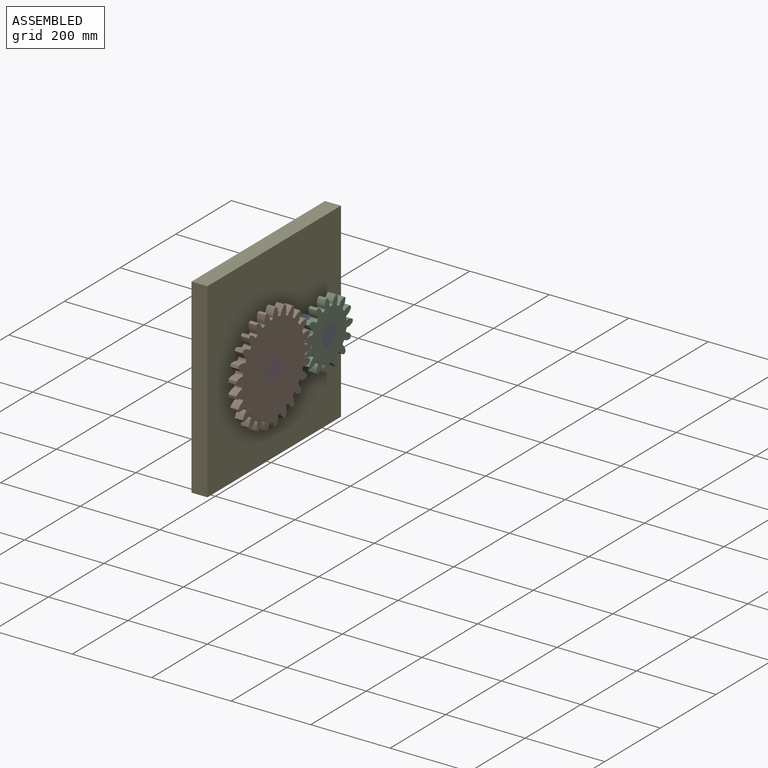
[diagram: assembled view]
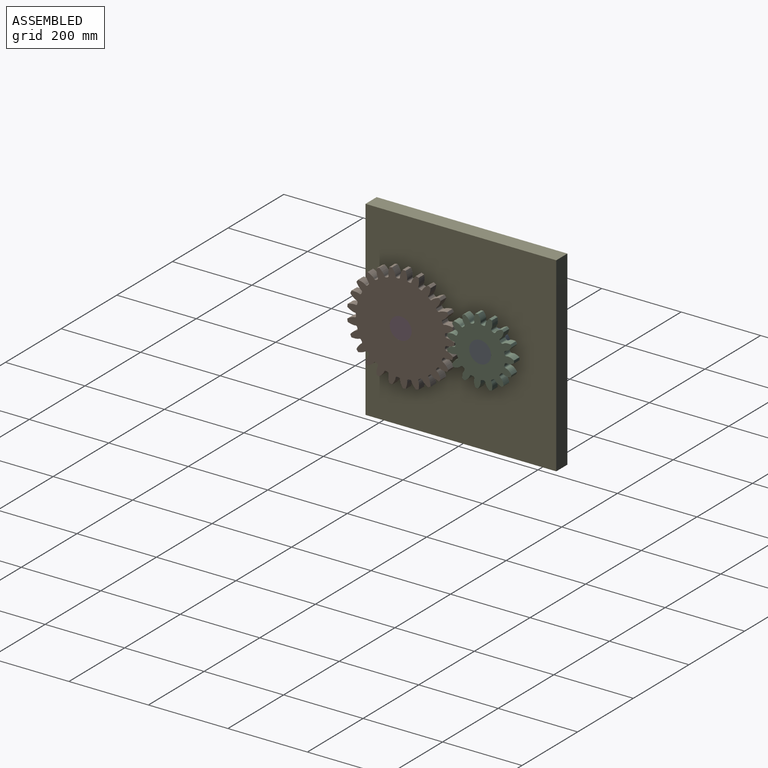
[diagram: assembled view, second angle]
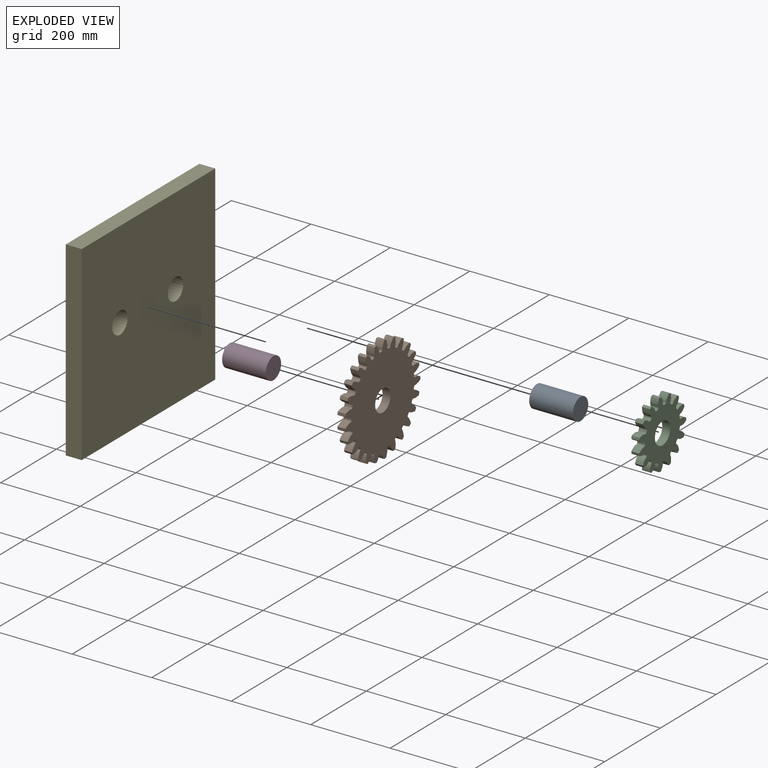
[diagram: exploded view]
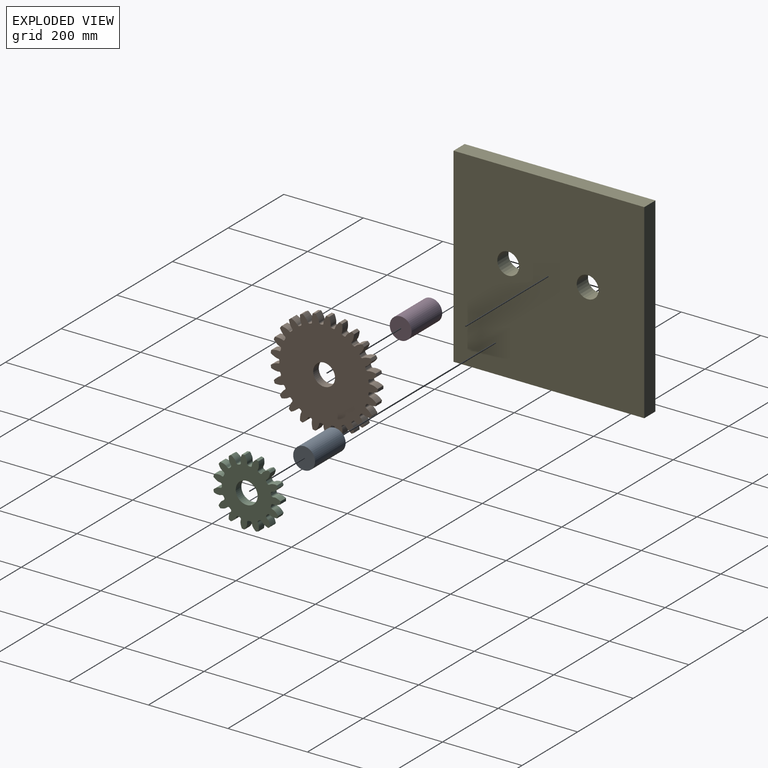
[diagram: exploded view, second angle]
ASSEMBLY  parts=5 mates=4
PART A: 3 faces, bbox 110x55x55 mm
  f0: cylinder r=27.5mm len=110mm, axis (-1,0,0), area 19006.6mm2, adj f1,f2
  f1: plane 55x55mm, normal (1,0,0), area 2375.8mm2, adj f0
  f2: plane 55x55mm, normal (-1,0,0), area 2375.8mm2, adj f0
PART B: 153 faces, bbox 269.4x20x269.9 mm
  f0: cylinder r=135mm len=20mm, axis (0,1,0), area 143.7mm2, adj f24,f26,f137,f149
  f1: cylinder r=135mm len=20mm, axis (0,1,0), area 143.7mm2, adj f24,f26,f144,f147
  f2: cylinder r=135mm len=20mm, axis (0,1,0), area 143.7mm2, adj f24,f26,f132,f139
  f3: cylinder r=135mm len=20mm, axis (0,1,0), area 143.7mm2, adj f24,f26,f127,f134
  f4: cylinder r=135mm len=20mm, axis (0,1,0), area 143.7mm2, adj f24,f26,f122,f129
  f5: cylinder r=135mm len=20mm, axis (0,1,0), area 143.7mm2, adj f24,f26,f112,f124
  f6: cylinder r=135mm len=20mm, axis (0,1,0), area 143.7mm2, adj f24,f26,f107,f119
  f7: cylinder r=135mm len=20mm, axis (0,1,0), area 143.7mm2, adj f24,f26,f114,f117
  f8: cylinder r=135mm len=20mm, axis (0,1,0), area 143.7mm2, adj f24,f26,f102,f109
  f9: cylinder r=135mm len=20mm, axis (0,1,0), area 143.7mm2, adj f24,f26,f97,f104
  f10: cylinder r=135mm len=20mm, axis (0,1,0), area 143.7mm2, adj f24,f26,f92,f99
  f11: cylinder r=135mm len=20mm, axis (0,1,0), area 143.7mm2, adj f24,f26,f77,f94
  f12: cylinder r=135mm len=20mm, axis (0,1,0), area 143.7mm2, adj f24,f26,f27,f89
  f13: cylinder r=135mm len=20mm, axis (0,1,0), area 143.7mm2, adj f24,f26,f84,f87
  f14: cylinder r=135mm len=20mm, axis (0,1,0), area 143.7mm2, adj f24,f26,f72,f79
  f15: cylinder r=135mm len=20mm, axis (0,1,0), area 143.7mm2, adj f24,f26,f74,f82
  f16: cylinder r=135mm len=20mm, axis (0,1,0), area 143.7mm2, adj f24,f26,f69,f142
  f17: cylinder r=135mm len=20mm, axis (0,1,0), area 143.7mm2, adj f24,f26,f64,f67
  f18: cylinder r=135mm len=20mm, axis (0,1,0), area 143.7mm2, adj f24,f26,f59,f62
  f19: cylinder r=135mm len=20mm, axis (0,1,0), area 143.7mm2, adj f24,f26,f54,f57
  f20: cylinder r=135mm len=20mm, axis (0,1,0), area 143.7mm2, adj f24,f26,f42,f49
  f21: cylinder r=135mm len=20mm, axis (0,1,0), area 143.7mm2, adj f24,f26,f32,f44
  f22: cylinder r=135mm len=20mm, axis (0,1,0), area 143.7mm2, adj f24,f26,f39,f52
  f23: cylinder r=135mm len=20mm, axis (0,1,0), area 143.7mm2, adj f24,f26,f34,f37
  f24: plane 269.87x269.36mm, normal (0,-1,0), area 45986.9mm2, adj f0,f1,f2,f3,f4,f5,f6,f7
  f25: cylinder r=135mm len=20mm, axis (0,1,0), area 143.7mm2, adj f24,f26,f29,f47
  f26: plane 269.87x269.36mm, normal (0,1,0), area 45986.9mm2, adj f0,f1,f2,f3,f4,f5,f6,f7
  f27: extruded ~20x18.25mm, area 401.8mm2, adj f12,f24,f26,f30
  f28: cylinder r=112.5mm len=20mm, axis (0,1,0), area 68.7mm2, adj f24,f26,f30,f31
  f29: extruded ~20x18.25mm, area 401.8mm2, adj f24,f25,f26,f31
  f30: cylinder r=3.79mm len=20mm, axis (0,1,0), area 116.3mm2, adj f24,f26,f27,f28
  f31: cylinder r=3.79mm len=20mm, axis (0,1,0), area 116.3mm2, adj f24,f26,f28,f29
  f32: extruded ~20x18.64mm, area 401.8mm2, adj f21,f24,f26,f35
  f33: cylinder r=112.5mm len=20mm, axis (0,1,0), area 68.7mm2, adj f24,f26,f35,f36
  f34: extruded ~20x18.18mm, area 401.8mm2, adj f23,f24,f26,f36
  f35: cylinder r=3.79mm len=20mm, axis (0,1,0), area 116.3mm2, adj f24,f26,f32,f33
  f36: cylinder r=3.79mm len=20mm, axis (0,1,0), area 116.3mm2, adj f24,f26,f33,f34
  f37: extruded ~20x16.36mm, area 401.8mm2, adj f23,f24,f26,f40
  f38: cylinder r=112.5mm len=20mm, axis (0,1,0), area 68.7mm2, adj f24,f26,f40,f41
  f39: extruded ~20x19.59mm, area 401.8mm2, adj f22,f24,f26,f41
  f40: cylinder r=3.79mm len=20mm, axis (0,1,0), area 116.3mm2, adj f24,f26,f37,f38
  f41: cylinder r=3.79mm len=20mm, axis (0,1,0), area 116.3mm2, adj f24,f26,f38,f39
  f42: extruded ~20x19.75mm, area 401.8mm2, adj f20,f24,f26,f45
  f43: cylinder r=112.5mm len=20mm, axis (0,1,0), area 68.7mm2, adj f24,f26,f45,f46
  f44: extruded ~20x15.62mm, area 401.8mm2, adj f21,f24,f26,f46
  f45: cylinder r=3.79mm len=20mm, axis (0,1,0), area 116.3mm2, adj f24,f26,f42,f43
  f46: cylinder r=3.79mm len=20mm, axis (0,1,0), area 116.3mm2, adj f24,f26,f43,f44
  f47: extruded ~20x19.62mm, area 401.8mm2, adj f24,f25,f26,f50
  f48: cylinder r=112.5mm len=20mm, axis (0,1,0), area 68.7mm2, adj f24,f26,f50,f51
  f49: extruded ~20x15.74mm, area 401.8mm2, adj f20,f24,f26,f51
  f50: cylinder r=3.79mm len=20mm, axis (0,1,0), area 116.3mm2, adj f24,f26,f47,f48
  f51: cylinder r=3.79mm len=20mm, axis (0,1,0), area 116.3mm2, adj f24,f26,f48,f49
  f52: extruded ~20x14.95mm, area 401.8mm2, adj f22,f24,f26,f55
  f53: cylinder r=112.5mm len=20mm, axis (0,1,0), area 68.7mm2, adj f24,f26,f55,f56
  f54: extruded ~20x19.77mm, area 401.8mm2, adj f19,f24,f26,f56
  f55: cylinder r=3.79mm len=20mm, axis (0,1,0), area 116.3mm2, adj f24,f26,f52,f53
  f56: cylinder r=3.79mm len=20mm, axis (0,1,0), area 116.3mm2, adj f24,f26,f53,f54
  f57: extruded ~20x17.73mm, area 401.8mm2, adj f19,f24,f26,f60
  f58: cylinder r=112.5mm len=20mm, axis (0,1,0), area 68.7mm2, adj f24,f26,f60,f61
  f59: extruded ~20x18.71mm, area 401.8mm2, adj f18,f24,f26,f61
  f60: cylinder r=3.79mm len=20mm, axis (0,1,0), area 116.3mm2, adj f24,f26,f57,f58
  f61: cylinder r=3.79mm len=20mm, axis (0,1,0), area 116.3mm2, adj f24,f26,f58,f59
  f62: extruded ~20x19.39mm, area 401.8mm2, adj f18,f24,f26,f65
  f63: cylinder r=112.5mm len=20mm, axis (0,1,0), area 68.7mm2, adj f24,f26,f65,f66
  f64: extruded ~20x16.47mm, area 401.8mm2, adj f17,f24,f26,f66
  f65: cylinder r=3.79mm len=20mm, axis (0,1,0), area 116.3mm2, adj f24,f26,f62,f63
  f66: cylinder r=3.79mm len=20mm, axis (0,1,0), area 116.3mm2, adj f24,f26,f63,f64
  f67: extruded ~20x19.83mm, area 401.8mm2, adj f17,f24,f26,f70
  f68: cylinder r=112.5mm len=20mm, axis (0,1,0), area 68.7mm2, adj f24,f26,f70,f71
  f69: extruded ~20x14.82mm, area 401.8mm2, adj f16,f24,f26,f71
  f70: cylinder r=3.79mm len=20mm, axis (0,1,0), area 116.3mm2, adj f24,f26,f67,f68
  f71: cylinder r=3.79mm len=20mm, axis (0,1,0), area 116.3mm2, adj f24,f26,f68,f69
  f72: extruded ~20x18.18mm, area 401.8mm2, adj f14,f24,f26,f75
  f73: cylinder r=112.5mm len=20mm, axis (0,1,0), area 68.7mm2, adj f24,f26,f75,f76
  f74: extruded ~20x18.64mm, area 401.8mm2, adj f15,f24,f26,f76
  f75: cylinder r=3.79mm len=20mm, axis (0,1,0), area 116.3mm2, adj f24,f26,f72,f73
  f76: cylinder r=3.79mm len=20mm, axis (0,1,0), area 116.3mm2, adj f24,f26,f73,f74
  f77: extruded ~20x19.59mm, area 401.8mm2, adj f11,f24,f26,f80
  f78: cylinder r=112.5mm len=20mm, axis (0,1,0), area 68.7mm2, adj f24,f26,f80,f81
  f79: extruded ~20x16.36mm, area 401.8mm2, adj f14,f24,f26,f81
  f80: cylinder r=3.79mm len=20mm, axis (0,1,0), area 116.3mm2, adj f24,f26,f77,f78
  f81: cylinder r=3.79mm len=20mm, axis (0,1,0), area 116.3mm2, adj f24,f26,f78,f79
  f82: extruded ~20x15.62mm, area 401.8mm2, adj f15,f24,f26,f85
  f83: cylinder r=112.5mm len=20mm, axis (0,1,0), area 68.7mm2, adj f24,f26,f85,f86
  f84: extruded ~20x19.75mm, area 401.8mm2, adj f13,f24,f26,f86
  f85: cylinder r=3.79mm len=20mm, axis (0,1,0), area 116.3mm2, adj f24,f26,f82,f83
  f86: cylinder r=3.79mm len=20mm, axis (0,1,0), area 116.3mm2, adj f24,f26,f83,f84
  f87: extruded ~20x15.74mm, area 401.8mm2, adj f13,f24,f26,f90
  f88: cylinder r=112.5mm len=20mm, axis (0,1,0), area 68.7mm2, adj f24,f26,f90,f91
  f89: extruded ~20x19.62mm, area 401.8mm2, adj f12,f24,f26,f91
  f90: cylinder r=3.79mm len=20mm, axis (0,1,0), area 116.3mm2, adj f24,f26,f87,f88
  f91: cylinder r=3.79mm len=20mm, axis (0,1,0), area 116.3mm2, adj f24,f26,f88,f89
  f92: extruded ~20x19.77mm, area 401.8mm2, adj f10,f24,f26,f95
  f93: cylinder r=112.5mm len=20mm, axis (0,1,0), area 68.7mm2, adj f24,f26,f95,f96
  f94: extruded ~20x14.95mm, area 401.8mm2, adj f11,f24,f26,f96
  f95: cylinder r=3.79mm len=20mm, axis (0,1,0), area 116.3mm2, adj f24,f26,f92,f93
  f96: cylinder r=3.79mm len=20mm, axis (0,1,0), area 116.3mm2, adj f24,f26,f93,f94
  f97: extruded ~20x18.71mm, area 401.8mm2, adj f9,f24,f26,f100
  f98: cylinder r=112.5mm len=20mm, axis (0,1,0), area 68.7mm2, adj f24,f26,f100,f101
  f99: extruded ~20x17.73mm, area 401.8mm2, adj f10,f24,f26,f101
  f100: cylinder r=3.79mm len=20mm, axis (0,1,0), area 116.3mm2, adj f24,f26,f97,f98
  f101: cylinder r=3.79mm len=20mm, axis (0,1,0), area 116.3mm2, adj f24,f26,f98,f99
  f102: extruded ~20x16.47mm, area 401.8mm2, adj f8,f24,f26,f105
  f103: cylinder r=112.5mm len=20mm, axis (0,1,0), area 68.7mm2, adj f24,f26,f105,f106
  f104: extruded ~20x19.39mm, area 401.8mm2, adj f9,f24,f26,f106
  f105: cylinder r=3.79mm len=20mm, axis (0,1,0), area 116.3mm2, adj f24,f26,f102,f103
  f106: cylinder r=3.79mm len=20mm, axis (0,1,0), area 116.3mm2, adj f24,f26,f103,f104
  f107: extruded ~20x14.82mm, area 401.8mm2, adj f6,f24,f26,f110
  f108: cylinder r=112.5mm len=20mm, axis (0,1,0), area 68.7mm2, adj f24,f26,f110,f111
  f109: extruded ~20x19.83mm, area 401.8mm2, adj f8,f24,f26,f111
  f110: cylinder r=3.79mm len=20mm, axis (0,1,0), area 116.3mm2, adj f24,f26,f107,f108
  f111: cylinder r=3.79mm len=20mm, axis (0,1,0), area 116.3mm2, adj f24,f26,f108,f109
  f112: extruded ~20x19.35mm, area 401.8mm2, adj f5,f24,f26,f115
  f113: cylinder r=112.5mm len=20mm, axis (0,1,0), area 68.7mm2, adj f24,f26,f115,f116
  f114: extruded ~20x17.03mm, area 401.8mm2, adj f7,f24,f26,f116
  f115: cylinder r=3.79mm len=20mm, axis (0,1,0), area 116.3mm2, adj f24,f26,f112,f113
  f116: cylinder r=3.79mm len=20mm, axis (0,1,0), area 116.3mm2, adj f24,f26,f113,f114
  f117: extruded ~20x17.64mm, area 401.8mm2, adj f7,f24,f26,f120
  f118: cylinder r=112.5mm len=20mm, axis (0,1,0), area 68.7mm2, adj f24,f26,f120,f121
  f119: extruded ~20x19.03mm, area 401.8mm2, adj f6,f24,f26,f121
  f120: cylinder r=3.79mm len=20mm, axis (0,1,0), area 116.3mm2, adj f24,f26,f117,f118
  f121: cylinder r=3.79mm len=20mm, axis (0,1,0), area 116.3mm2, adj f24,f26,f118,f119
  f122: extruded ~20x19.84mm, area 401.8mm2, adj f4,f24,f26,f125
  f123: cylinder r=112.5mm len=20mm, axis (0,1,0), area 68.7mm2, adj f24,f26,f125,f126
  f124: extruded ~20x14.1mm, area 401.8mm2, adj f5,f24,f26,f126
  f125: cylinder r=3.79mm len=20mm, axis (0,1,0), area 116.3mm2, adj f24,f26,f122,f123
  f126: cylinder r=3.79mm len=20mm, axis (0,1,0), area 116.3mm2, adj f24,f26,f123,f124
  f127: extruded ~20x19.09mm, area 401.8mm2, adj f3,f24,f26,f130
  f128: cylinder r=112.5mm len=20mm, axis (0,1,0), area 68.7mm2, adj f24,f26,f130,f131
  f129: extruded ~20x17.13mm, area 401.8mm2, adj f4,f24,f26,f131
  f130: cylinder r=3.79mm len=20mm, axis (0,1,0), area 116.3mm2, adj f24,f26,f127,f128
  f131: cylinder r=3.79mm len=20mm, axis (0,1,0), area 116.3mm2, adj f24,f26,f128,f129
  f132: extruded ~20x17.13mm, area 401.8mm2, adj f2,f24,f26,f135
  f133: cylinder r=112.5mm len=20mm, axis (0,1,0), area 68.7mm2, adj f24,f26,f135,f136
  f134: extruded ~20x19.09mm, area 401.8mm2, adj f3,f24,f26,f136
  f135: cylinder r=3.79mm len=20mm, axis (0,1,0), area 116.3mm2, adj f24,f26,f132,f133
  f136: cylinder r=3.79mm len=20mm, axis (0,1,0), area 116.3mm2, adj f24,f26,f133,f134
  f137: extruded ~20x14.1mm, area 401.8mm2, adj f0,f24,f26,f140
  f138: cylinder r=112.5mm len=20mm, axis (0,1,0), area 68.7mm2, adj f24,f26,f140,f141
  f139: extruded ~20x19.84mm, area 401.8mm2, adj f2,f24,f26,f141
  f140: cylinder r=3.79mm len=20mm, axis (0,1,0), area 116.3mm2, adj f24,f26,f137,f138
  f141: cylinder r=3.79mm len=20mm, axis (0,1,0), area 116.3mm2, adj f24,f26,f138,f139
  f142: extruded ~20x19.03mm, area 401.8mm2, adj f16,f24,f26,f145
  f143: cylinder r=112.5mm len=20mm, axis (0,1,0), area 68.7mm2, adj f24,f26,f145,f146
  f144: extruded ~20x17.64mm, area 401.8mm2, adj f1,f24,f26,f146
  f145: cylinder r=3.79mm len=20mm, axis (0,1,0), area 116.3mm2, adj f24,f26,f142,f143
  f146: cylinder r=3.79mm len=20mm, axis (0,1,0), area 116.3mm2, adj f24,f26,f143,f144
  f147: extruded ~20x17.03mm, area 401.8mm2, adj f1,f24,f26,f150
  f148: cylinder r=112.5mm len=20mm, axis (0,1,0), area 68.7mm2, adj f24,f26,f150,f151
  f149: extruded ~20x19.35mm, area 401.8mm2, adj f0,f24,f26,f151
  f150: cylinder r=3.79mm len=20mm, axis (0,1,0), area 116.3mm2, adj f24,f26,f147,f148
  f151: cylinder r=3.79mm len=20mm, axis (0,1,0), area 116.3mm2, adj f24,f26,f148,f149
  f152: cylinder r=27.5mm len=55mm, axis (0,-1,0), area 3455.8mm2, adj f24,f26
PART C: 93 faces, bbox 168.9x20x169.9 mm
  f0: cylinder r=85mm len=20mm, axis (0,1,0), area 131mm2, adj f14,f16,f84,f88
  f1: cylinder r=85mm len=20mm, axis (0,1,0), area 131mm2, adj f14,f16,f79,f83
  f2: cylinder r=85mm len=20mm, axis (0,1,0), area 131mm2, adj f14,f16,f74,f78
  f3: cylinder r=85mm len=20mm, axis (0,1,0), area 131mm2, adj f14,f16,f69,f73
  f4: cylinder r=85mm len=20mm, axis (0,1,0), area 131mm2, adj f14,f16,f64,f68
  f5: cylinder r=85mm len=20mm, axis (0,1,0), area 131mm2, adj f14,f16,f54,f63
  f6: cylinder r=85mm len=20mm, axis (0,1,0), area 131mm2, adj f14,f16,f19,f58
  f7: cylinder r=85mm len=20mm, axis (0,1,0), area 131mm2, adj f14,f16,f53,f59
  f8: cylinder r=85mm len=20mm, axis (0,1,0), area 131mm2, adj f14,f16,f44,f48
  f9: cylinder r=85mm len=20mm, axis (0,1,0), area 131mm2, adj f14,f16,f34,f43
  f10: cylinder r=85mm len=20mm, axis (0,1,0), area 131mm2, adj f14,f16,f29,f38
  f11: cylinder r=85mm len=20mm, axis (0,1,0), area 131mm2, adj f14,f16,f33,f39
  f12: cylinder r=85mm len=20mm, axis (0,1,0), area 131mm2, adj f14,f16,f24,f28
  f13: cylinder r=85mm len=20mm, axis (0,1,0), area 131mm2, adj f14,f16,f23,f89
  f14: plane 169.88x168.95mm, normal (0,-1,0), area 14784mm2, adj f0,f1,f2,f3,f4,f5,f6,f7
  f15: cylinder r=85mm len=20mm, axis (0,1,0), area 131mm2, adj f14,f16,f18,f49
  f16: plane 169.88x168.95mm, normal (0,1,0), area 14784mm2, adj f0,f1,f2,f3,f4,f5,f6,f7
  f17: cylinder r=62.5mm len=20mm, axis (0,1,0), area 70.3mm2, adj f14,f16,f20,f21
  f18: extruded ~20x19.49mm, area 401.2mm2, adj f14,f15,f16,f20
  f19: extruded ~20x14.91mm, area 401.2mm2, adj f6,f14,f16,f21
  f20: cylinder r=4.1mm len=20mm, axis (0,1,0), area 123.8mm2, adj f14,f16,f17,f18
  f21: cylinder r=4.1mm len=20mm, axis (0,1,0), area 123.8mm2, adj f14,f16,f17,f19
  f22: cylinder r=62.5mm len=20mm, axis (0,1,0), area 70.3mm2, adj f14,f16,f25,f26
  f23: extruded ~20x16.14mm, area 401.2mm2, adj f13,f14,f16,f25
  f24: extruded ~20x19.45mm, area 401.2mm2, adj f12,f14,f16,f26
  f25: cylinder r=4.1mm len=20mm, axis (0,1,0), area 123.8mm2, adj f14,f16,f22,f23
  f26: cylinder r=4.1mm len=20mm, axis (0,1,0), area 123.8mm2, adj f14,f16,f22,f24
  f27: cylinder r=62.5mm len=20mm, axis (0,1,0), area 70.3mm2, adj f14,f16,f30,f31
  f28: extruded ~20x16.57mm, area 401.2mm2, adj f12,f14,f16,f30
  f29: extruded ~20x18.34mm, area 401.2mm2, adj f10,f14,f16,f31
  f30: cylinder r=4.1mm len=20mm, axis (0,1,0), area 123.8mm2, adj f14,f16,f27,f28
  f31: cylinder r=4.1mm len=20mm, axis (0,1,0), area 123.8mm2, adj f14,f16,f27,f29
  f32: cylinder r=62.5mm len=20mm, axis (0,1,0), area 70.3mm2, adj f14,f16,f35,f36
  f33: extruded ~20x18.73mm, area 401.2mm2, adj f11,f14,f16,f35
  f34: extruded ~20x18.06mm, area 401.2mm2, adj f9,f14,f16,f36
  f35: cylinder r=4.1mm len=20mm, axis (0,1,0), area 123.8mm2, adj f14,f16,f32,f33
  f36: cylinder r=4.1mm len=20mm, axis (0,1,0), area 123.8mm2, adj f14,f16,f32,f34
  f37: cylinder r=62.5mm len=20mm, axis (0,1,0), area 70.3mm2, adj f14,f16,f40,f41
  f38: extruded ~20x19.32mm, area 401.2mm2, adj f10,f14,f16,f40
  f39: extruded ~20x14.06mm, area 401.2mm2, adj f11,f14,f16,f41
  f40: cylinder r=4.1mm len=20mm, axis (0,1,0), area 123.8mm2, adj f14,f16,f37,f38
  f41: cylinder r=4.1mm len=20mm, axis (0,1,0), area 123.8mm2, adj f14,f16,f37,f39
  f42: cylinder r=62.5mm len=20mm, axis (0,1,0), area 70.3mm2, adj f14,f16,f45,f46
  f43: extruded ~20x14.91mm, area 401.2mm2, adj f9,f14,f16,f45
  f44: extruded ~20x19.49mm, area 401.2mm2, adj f8,f14,f16,f46
  f45: cylinder r=4.1mm len=20mm, axis (0,1,0), area 123.8mm2, adj f14,f16,f42,f43
  f46: cylinder r=4.1mm len=20mm, axis (0,1,0), area 123.8mm2, adj f14,f16,f42,f44
  f47: cylinder r=62.5mm len=20mm, axis (0,1,0), area 70.3mm2, adj f14,f16,f50,f51
  f48: extruded ~20x17.55mm, area 401.2mm2, adj f8,f14,f16,f50
  f49: extruded ~20x17.55mm, area 401.2mm2, adj f14,f15,f16,f51
  f50: cylinder r=4.1mm len=20mm, axis (0,1,0), area 123.8mm2, adj f14,f16,f47,f48
  f51: cylinder r=4.1mm len=20mm, axis (0,1,0), area 123.8mm2, adj f14,f16,f47,f49
  f52: cylinder r=62.5mm len=20mm, axis (0,1,0), area 70.3mm2, adj f14,f16,f55,f56
  f53: extruded ~20x14.06mm, area 401.2mm2, adj f7,f14,f16,f55
  f54: extruded ~20x19.32mm, area 401.2mm2, adj f5,f14,f16,f56
  f55: cylinder r=4.1mm len=20mm, axis (0,1,0), area 123.8mm2, adj f14,f16,f52,f53
  f56: cylinder r=4.1mm len=20mm, axis (0,1,0), area 123.8mm2, adj f14,f16,f52,f54
  f57: cylinder r=62.5mm len=20mm, axis (0,1,0), area 70.3mm2, adj f14,f16,f60,f61
  f58: extruded ~20x18.06mm, area 401.2mm2, adj f6,f14,f16,f60
  f59: extruded ~20x18.73mm, area 401.2mm2, adj f7,f14,f16,f61
  f60: cylinder r=4.1mm len=20mm, axis (0,1,0), area 123.8mm2, adj f14,f16,f57,f58
  f61: cylinder r=4.1mm len=20mm, axis (0,1,0), area 123.8mm2, adj f14,f16,f57,f59
  f62: cylinder r=62.5mm len=20mm, axis (0,1,0), area 70.3mm2, adj f14,f16,f65,f66
  f63: extruded ~20x18.34mm, area 401.2mm2, adj f5,f14,f16,f65
  f64: extruded ~20x16.57mm, area 401.2mm2, adj f4,f14,f16,f66
  f65: cylinder r=4.1mm len=20mm, axis (0,1,0), area 123.8mm2, adj f14,f16,f62,f63
  f66: cylinder r=4.1mm len=20mm, axis (0,1,0), area 123.8mm2, adj f14,f16,f62,f64
  f67: cylinder r=62.5mm len=20mm, axis (0,1,0), area 70.3mm2, adj f14,f16,f70,f71
  f68: extruded ~20x19.45mm, area 401.2mm2, adj f4,f14,f16,f70
  f69: extruded ~20x16.14mm, area 401.2mm2, adj f3,f14,f16,f71
  f70: cylinder r=4.1mm len=20mm, axis (0,1,0), area 123.8mm2, adj f14,f16,f67,f68
  f71: cylinder r=4.1mm len=20mm, axis (0,1,0), area 123.8mm2, adj f14,f16,f67,f69
  f72: cylinder r=62.5mm len=20mm, axis (0,1,0), area 70.3mm2, adj f14,f16,f75,f76
  f73: extruded ~20x17.2mm, area 401.2mm2, adj f3,f14,f16,f75
  f74: extruded ~20x19.2mm, area 401.2mm2, adj f2,f14,f16,f76
  f75: cylinder r=4.1mm len=20mm, axis (0,1,0), area 123.8mm2, adj f14,f16,f72,f73
  f76: cylinder r=4.1mm len=20mm, axis (0,1,0), area 123.8mm2, adj f14,f16,f72,f74
  f77: cylinder r=62.5mm len=20mm, axis (0,1,0), area 70.3mm2, adj f14,f16,f80,f81
  f78: extruded ~20x15.4mm, area 401.2mm2, adj f2,f14,f16,f80
  f79: extruded ~20x18.94mm, area 401.2mm2, adj f1,f14,f16,f81
  f80: cylinder r=4.1mm len=20mm, axis (0,1,0), area 123.8mm2, adj f14,f16,f77,f78
  f81: cylinder r=4.1mm len=20mm, axis (0,1,0), area 123.8mm2, adj f14,f16,f77,f79
  f82: cylinder r=62.5mm len=20mm, axis (0,1,0), area 70.3mm2, adj f14,f16,f85,f86
  f83: extruded ~20x18.94mm, area 401.2mm2, adj f1,f14,f16,f85
  f84: extruded ~20x15.4mm, area 401.2mm2, adj f0,f14,f16,f86
  f85: cylinder r=4.1mm len=20mm, axis (0,1,0), area 123.8mm2, adj f14,f16,f82,f83
  f86: cylinder r=4.1mm len=20mm, axis (0,1,0), area 123.8mm2, adj f14,f16,f82,f84
  f87: cylinder r=62.5mm len=20mm, axis (0,1,0), area 70.3mm2, adj f14,f16,f90,f91
  f88: extruded ~20x19.2mm, area 401.2mm2, adj f0,f14,f16,f90
  f89: extruded ~20x17.2mm, area 401.2mm2, adj f13,f14,f16,f91
  f90: cylinder r=4.1mm len=20mm, axis (0,1,0), area 123.8mm2, adj f14,f16,f87,f88
  f91: cylinder r=4.1mm len=20mm, axis (0,1,0), area 123.8mm2, adj f14,f16,f87,f89
  f92: cylinder r=27.5mm len=55mm, axis (0,-1,0), area 3455.8mm2, adj f14,f16
PART D: same geometry as A
PART E: 8 faces, bbox 40x480x480 mm
  f0: plane 480x40mm, normal (0,0,1), area 19200mm2, adj f1,f3,f4,f5
  f1: plane 480x40mm, normal (0,-1,0), area 19200mm2, adj f0,f2,f4,f5
  f2: plane 480x40mm, normal (0,0,-1), area 19200mm2, adj f1,f3,f4,f5
  f3: plane 480x40mm, normal (0,1,0), area 19200mm2, adj f0,f2,f4,f5
  f4: plane 480x480mm, normal (1,0,0), area 225648.3mm2, adj f0,f1,f2,f3,f6,f7
  f5: plane 480x480mm, normal (-1,0,0), area 225648.3mm2, adj f0,f1,f2,f3,f6,f7
  f6: cylinder r=27.5mm len=55mm, axis (1,0,0), area 6911.5mm2, adj f4,f5
  f7: cylinder r=27.5mm len=55mm, axis (1,0,0), area 6911.5mm2, adj f4,f5
PLACE A t=(-77.47,1020.03,276.92)mm
PLACE B rot(axis=(0,0,-1),90deg) t=(72.53,-94.64,25.92)mm
PLACE C rot(axis=(-0.45,0.45,0.77),104.5deg) t=(52.53,105.36,25.92)mm
PLACE D t=(-77.47,820.03,276.92)mm
PLACE E t=(-37.47,389.69,240.38)mm fixed
MATE revolute D.f0 <-> B.f0  axis (1,0,0) through (72.53,-94.64,25.92)mm
MATE fastened A.f0 <-> E.f6  axis (-1,0,0) through (-37.47,105.36,25.92)mm
MATE fastened D.f0 <-> E.f7  axis (-1,0,0) through (-37.47,-94.64,25.92)mm
MATE revolute A.f0 <-> C.f92  axis (1,0,0) through (72.53,105.36,25.92)mm
